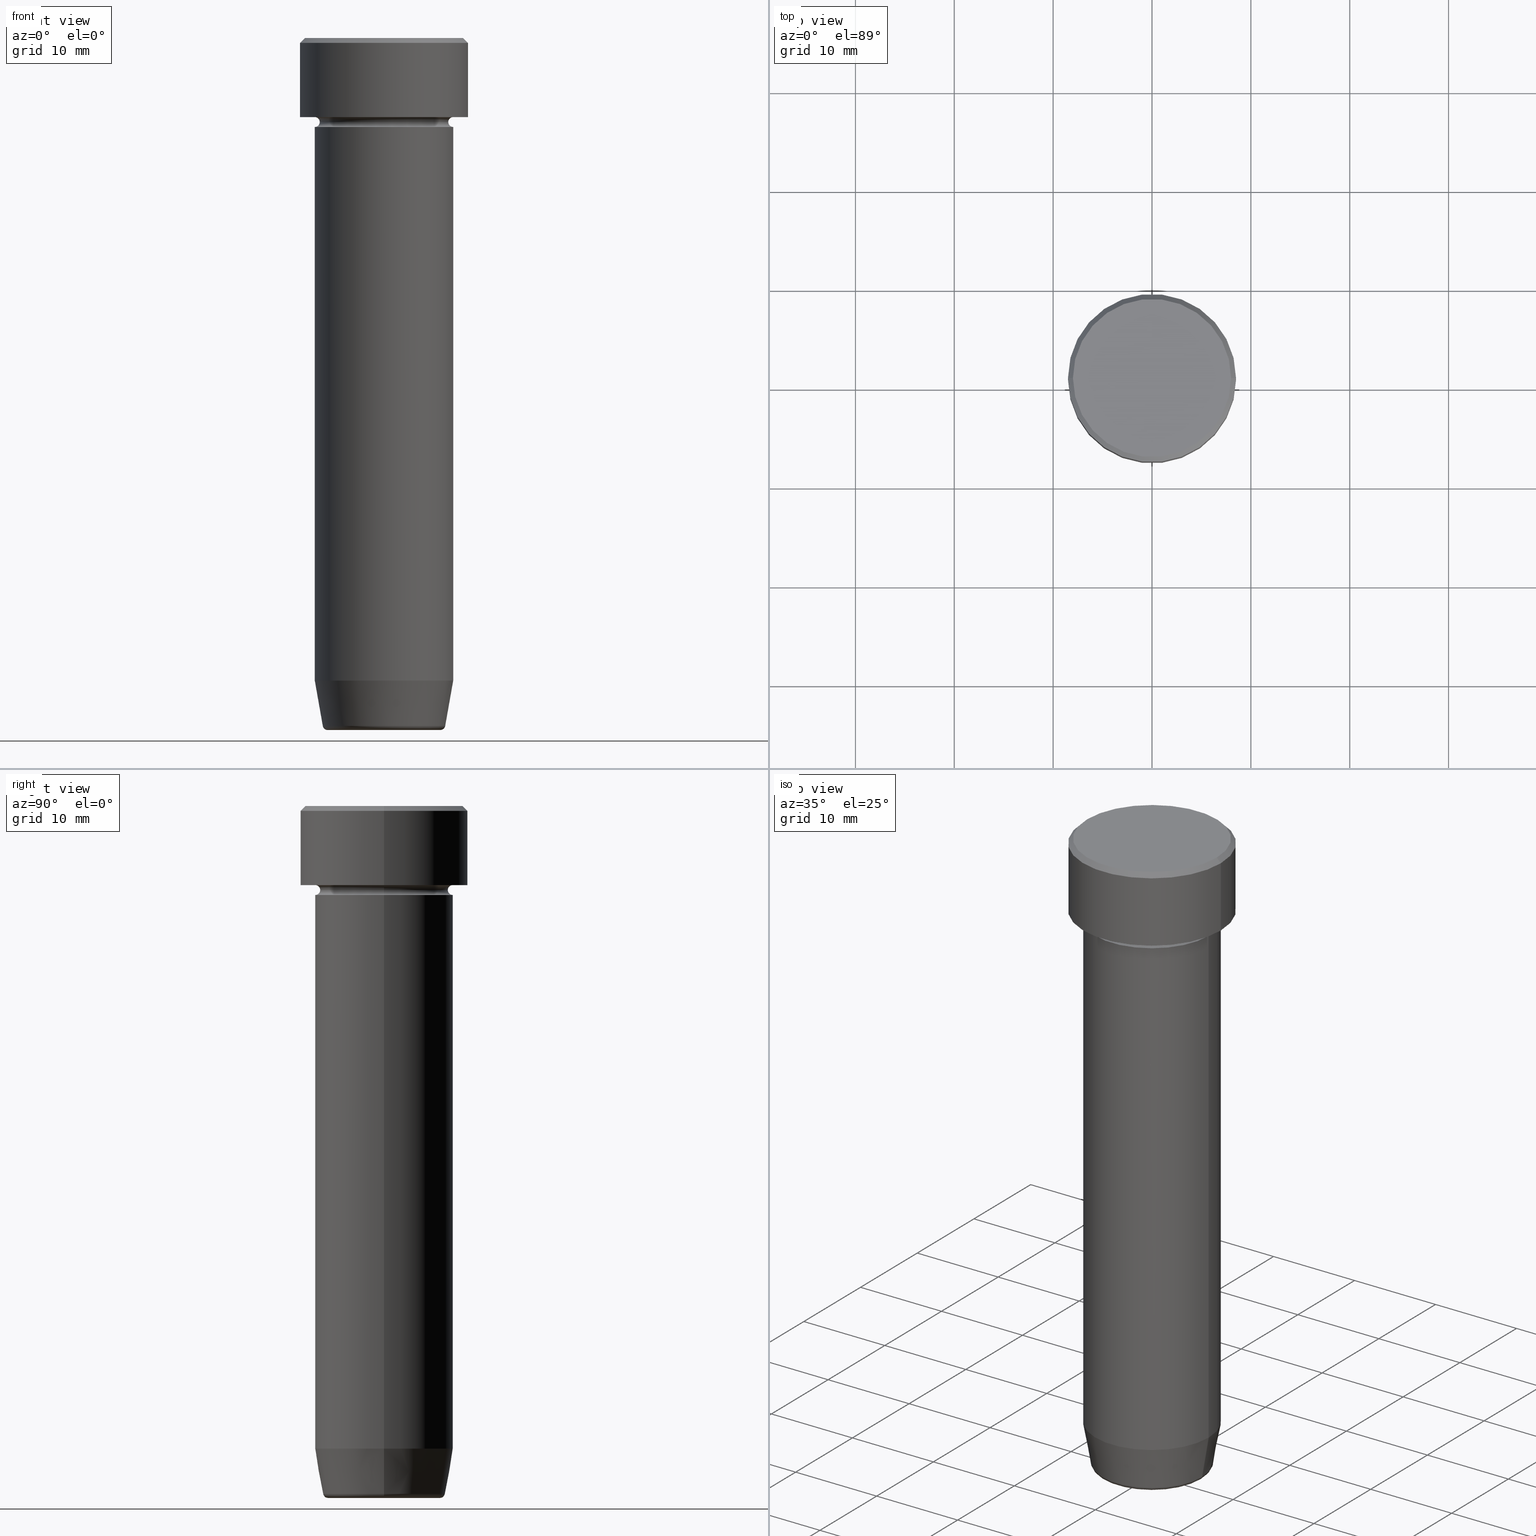
[diagram: canonical four-view strip — front | top / right | iso, engineering-drawing reading convention]
A machine part, canonical four-view strip (front | top / right | iso — engineering-drawing reading convention). The complete STEP part file that produces these views, byte-faithful:
ISO-10303-21;
HEADER;
FILE_DESCRIPTION (( 'STEP AP203' ),
    '1' );
FILE_NAME ('c4c0.STEP',
    '2024-01-02T23:21:07',
    ( '' ),
    ( '' ),
    'SwSTEP 2.0',
    'SolidWorks 2019',
    '' );
FILE_SCHEMA (( 'CONFIG_CONTROL_DESIGN' ));
ENDSEC;

DATA;
#1 = AXIS2_PLACEMENT_3D ( 'NONE', #133, #444, #6 ) ;
#2 = DIRECTION ( 'NONE',  ( 0.000000000000000000, -1.000000000000000000, 0.000000000000000000 ) ) ;
#3 = AXIS2_PLACEMENT_3D ( 'NONE', #91, #544, #594 ) ;
#4 = ORIENTED_EDGE ( 'NONE', *, *, #54, .T. ) ;
#5 = DIRECTION ( 'NONE',  ( -1.000000000000000000, 0.000000000000000000, -0.000000000000000000 ) ) ;
#6 = DIRECTION ( 'NONE',  ( -1.000000000000000000, 0.000000000000000000, 0.000000000000000000 ) ) ;
#7 = CC_DESIGN_DATE_AND_TIME_ASSIGNMENT ( #312, #127, ( #471 ) ) ;
#8 = APPLICATION_CONTEXT ( 'configuration controlled 3d designs of mechanical parts and assemblies' ) ;
#9 = VECTOR ( 'NONE', #131, 1000.000000000000000 ) ;
#10 = DIRECTION ( 'NONE',  ( -0.000000000000000000, -0.000000000000000000, 1.000000000000000000 ) ) ;
#11 = FACE_OUTER_BOUND ( 'NONE', #106, .T. ) ;
#12 = LOCAL_TIME ( 0, 21, 7.000000000000000000, #178 ) ;
#13 = CARTESIAN_POINT ( 'NONE',  ( 6.118365096457672792, 0.000000000000000000, -70.00000000000000000 ) ) ;
#14 = CARTESIAN_POINT ( 'NONE',  ( 6.999999999999999112, 0.000000000000000000, -22.00000000000000000 ) ) ;
#15 = CARTESIAN_POINT ( 'NONE',  ( -6.999999999999999112, 8.572527594031472204E-16, -65.00000000000000000 ) ) ;
#16 = DIRECTION ( 'NONE',  ( -1.000000000000000000, 0.000000000000000000, -0.000000000000000000 ) ) ;
#17 = TOROIDAL_SURFACE ( 'NONE', #359, 5.698815280869032662, 0.5000000000000000000 ) ;
#18 = ORIENTED_EDGE ( 'NONE', *, *, #218, .F. ) ;
#19 = PRODUCT_DEFINITION_FORMATION_WITH_SPECIFIED_SOURCE ( 'LIBOVOLN�', '', #274, .NOT_KNOWN. ) ;
#20 = ADVANCED_FACE ( 'NONE', ( #375 ), #142, .T. ) ;
#21 = APPROVAL_DATE_TIME ( #294, #477 ) ;
#22 = AXIS2_PLACEMENT_3D ( 'NONE', #140, #107, #242 ) ;
#23 = VERTEX_POINT ( 'NONE', #276 ) ;
#24 = AXIS2_PLACEMENT_3D ( 'NONE', #455, #145, #466 ) ;
#25 = CC_DESIGN_APPROVAL ( #477, ( #73 ) ) ;
#26 = ORIENTED_EDGE ( 'NONE', *, *, #226, .F. ) ;
#27 = DIRECTION ( 'NONE',  ( -0.000000000000000000, -0.000000000000000000, 1.000000000000000000 ) ) ;
#28 = DIRECTION ( 'NONE',  ( -0.000000000000000000, -0.000000000000000000, 1.000000000000000000 ) ) ;
#29 = EDGE_CURVE ( 'NONE', #23, #433, #273, .T. ) ;
#30 = VERTEX_POINT ( 'NONE', #162 ) ;
#31 = PERSON_AND_ORGANIZATION ( #533, #595 ) ;
#32 = DIRECTION ( 'NONE',  ( -1.000000000000000000, 0.000000000000000000, 0.000000000000000000 ) ) ;
#33 = EDGE_LOOP ( 'NONE', ( #586, #214, #388, #393 ) ) ;
#34 = CYLINDRICAL_SURFACE ( 'NONE', #481, 6.999999999999999112 ) ;
#35 = CIRCLE ( 'NONE', #552, 8.500000000000000000 ) ;
#36 = DIRECTION ( 'NONE',  ( 1.000000000000000000, 0.000000000000000000, 0.000000000000000000 ) ) ;
#37 = ADVANCED_FACE ( 'NONE', ( #165 ), #447, .F. ) ;
#38 = EDGE_CURVE ( 'NONE', #408, #77, #525, .T. ) ;
#39 = ORIENTED_EDGE ( 'NONE', *, *, #29, .F. ) ;
#40 = FACE_OUTER_BOUND ( 'NONE', #110, .T. ) ;
#41 = CARTESIAN_POINT ( 'NONE',  ( 6.999999999999999112, 0.000000000000000000, 0.000000000000000000 ) ) ;
#42 = CIRCLE ( 'NONE', #314, 6.999999999999999112 ) ;
#43 = ADVANCED_FACE ( 'NONE', ( #269 ), #560, .F. ) ;
#44 = ORIENTED_EDGE ( 'NONE', *, *, #330, .F. ) ;
#45 = CARTESIAN_POINT ( 'NONE',  ( 0.000000000000000000, 0.000000000000000000, -8.500000000000000000 ) ) ;
#46 = CARTESIAN_POINT ( 'NONE',  ( 0.000000000000000000, 0.000000000000000000, -0.4999999999999987232 ) ) ;
#47 = ADVANCED_FACE ( 'NONE', ( #399 ), #17, .T. ) ;
#48 = DIRECTION ( 'NONE',  ( -0.000000000000000000, -0.000000000000000000, 1.000000000000000000 ) ) ;
#49 = EDGE_CURVE ( 'NONE', #400, #385, #439, .T. ) ;
#50 = DIRECTION ( 'NONE',  ( -0.1736481776669304145, 2.126576849575772531E-17, 0.9848077530122080203 ) ) ;
#51 = CIRCLE ( 'NONE', #396, 8.500000000000000000 ) ;
#52 = DIRECTION ( 'NONE',  ( 0.000000000000000000, -0.000000000000000000, 1.000000000000000000 ) ) ;
#53 = AXIS2_PLACEMENT_3D ( 'NONE', #203, #579, #532 ) ;
#54 = EDGE_CURVE ( 'NONE', #83, #230, #90, .T. ) ;
#55 = CC_DESIGN_SECURITY_CLASSIFICATION ( #471, ( #19 ) ) ;
#56 = CARTESIAN_POINT ( 'NONE',  ( 8.000000000000000000, 9.797174393178825657E-16, 0.000000000000000000 ) ) ;
#57 = EDGE_LOOP ( 'NONE', ( #431, #410, #202, #488 ) ) ;
#58 = ORIENTED_EDGE ( 'NONE', *, *, #153, .T. ) ;
#59 = CALENDAR_DATE ( 2024, 3, 1 ) ;
#60 = CARTESIAN_POINT ( 'NONE',  ( 0.000000000000000000, 2.449293598294708880E-15, -70.00000000000000000 ) ) ;
#61 = ORIENTED_EDGE ( 'NONE', *, *, #308, .T. ) ;
#62 = EDGE_CURVE ( 'NONE', #352, #230, #309, .T. ) ;
#63 = ADVANCED_FACE ( 'NONE', ( #557 ), #272, .T. ) ;
#64 = ORIENTED_EDGE ( 'NONE', *, *, #347, .F. ) ;
#65 =( LENGTH_UNIT ( ) NAMED_UNIT ( * ) SI_UNIT ( .MILLI., .METRE. ) );
#66 = EDGE_CURVE ( 'NONE', #418, #30, #513, .T. ) ;
#67 = CIRCLE ( 'NONE', #289, 7.000000000000000888 ) ;
#68 = DIRECTION ( 'NONE',  ( 1.000000000000000000, 0.000000000000000000, 0.000000000000000000 ) ) ;
#69 = CARTESIAN_POINT ( 'NONE',  ( 0.000000000000000000, 0.000000000000000000, 0.000000000000000000 ) ) ;
#70 = APPROVAL_STATUS ( 'not_yet_approved' ) ;
#71 = CARTESIAN_POINT ( 'NONE',  ( 0.000000000000000000, 0.000000000000000000, 0.000000000000000000 ) ) ;
#72 = ORIENTED_EDGE ( 'NONE', *, *, #66, .T. ) ;
#73 = PRODUCT_DEFINITION ( 'NEZN�M�', '', #19, #93 ) ;
#74 = DIRECTION ( 'NONE',  ( 0.000000000000000000, 0.000000000000000000, 1.000000000000000000 ) ) ;
#75 = EDGE_LOOP ( 'NONE', ( #311, #250, #177, #548 ) ) ;
#76 = AXIS2_PLACEMENT_3D ( 'NONE', #96, #196, #465 ) ;
#77 = VERTEX_POINT ( 'NONE', #14 ) ;
#78 = CIRCLE ( 'NONE', #149, 6.500000000000000888 ) ;
#79 = CARTESIAN_POINT ( 'NONE',  ( -6.999999999999999112, 8.572527594031472204E-16, -22.00000000000000000 ) ) ;
#80 = APPROVAL_STATUS ( 'not_yet_approved' ) ;
#81 = APPROVAL ( #80, 'NEUR�EN�' ) ;
#82 = AXIS2_PLACEMENT_3D ( 'NONE', #101, #509, #386 ) ;
#83 = VERTEX_POINT ( 'NONE', #478 ) ;
#84 = LOCAL_TIME ( 0, 21, 7.000000000000000000, #358 ) ;
#85 = ORIENTED_EDGE ( 'NONE', *, *, #224, .F. ) ;
#86 = APPROVAL_DATE_TIME ( #172, #81 ) ;
#87 = FACE_OUTER_BOUND ( 'NONE', #520, .T. ) ;
#88 = DIRECTION ( 'NONE',  ( 1.000000000000000000, 0.000000000000000000, 0.000000000000000000 ) ) ;
#89 = CC_DESIGN_PERSON_AND_ORGANIZATION_ASSIGNMENT ( #130, #175, ( #471 ) ) ;
#90 = CIRCLE ( 'NONE', #427, 0.5000000000000004441 ) ;
#91 = CARTESIAN_POINT ( 'NONE',  ( 0.000000000000000000, 0.000000000000000000, -8.000000000000000000 ) ) ;
#92 = DIRECTION ( 'NONE',  ( -1.000000000000000000, 0.000000000000000000, 0.000000000000000000 ) ) ;
#93 = DESIGN_CONTEXT ( 'detailed design', #8, 'design' ) ;
#94 = FACE_OUTER_BOUND ( 'NONE', #317, .T. ) ;
#95 = AXIS2_PLACEMENT_3D ( 'NONE', #316, #2, #445 ) ;
#96 = CARTESIAN_POINT ( 'NONE',  ( 7.000000000000000888, 8.572527594031474176E-16, -8.500000000000000000 ) ) ;
#97 = DIRECTION ( 'NONE',  ( 1.000000000000000000, 0.000000000000000000, 0.000000000000000000 ) ) ;
#98 = CARTESIAN_POINT ( 'NONE',  ( 0.000000000000000000, 0.000000000000000000, -9.000000000000001776 ) ) ;
#99 = CLOSED_SHELL ( 'NONE', ( #20, #37, #280, #589, #287, #534, #459, #63, #195, #256, #492, #43, #519 ) ) ;
#100 = ORIENTED_EDGE ( 'NONE', *, *, #139, .T. ) ;
#101 = CARTESIAN_POINT ( 'NONE',  ( 0.000000000000000000, 0.000000000000000000, -70.00000000000000000 ) ) ;
#102 = AXIS2_PLACEMENT_3D ( 'NONE', #98, #143, #428 ) ;
#103 = CIRCLE ( 'NONE', #255, 8.500000000000000000 ) ;
#104 = AXIS2_PLACEMENT_3D ( 'NONE', #109, #248, #111 ) ;
#105 = ORIENTED_EDGE ( 'NONE', *, *, #423, .T. ) ;
#106 = EDGE_LOOP ( 'NONE', ( #365, #222 ) ) ;
#107 = DIRECTION ( 'NONE',  ( -0.000000000000000000, -0.000000000000000000, 1.000000000000000000 ) ) ;
#108 = ORIENTED_EDGE ( 'NONE', *, *, #336, .F. ) ;
#109 = CARTESIAN_POINT ( 'NONE',  ( 0.000000000000000000, 0.000000000000000000, 0.000000000000000000 ) ) ;
#110 = EDGE_LOOP ( 'NONE', ( #210, #449, #44, #85 ) ) ;
#111 = DIRECTION ( 'NONE',  ( 1.000000000000000000, 0.000000000000000000, 0.000000000000000000 ) ) ;
#112 = DIRECTION ( 'NONE',  ( 1.000000000000000000, 0.000000000000000000, 0.000000000000000000 ) ) ;
#113 = CIRCLE ( 'NONE', #373, 0.5000000000000004441 ) ;
#114 = ORIENTED_EDGE ( 'NONE', *, *, #38, .F. ) ;
#115 = DIRECTION ( 'NONE',  ( 0.000000000000000000, 0.000000000000000000, -1.000000000000000000 ) ) ;
#116 = AXIS2_PLACEMENT_3D ( 'NONE', #456, #541, #118 ) ;
#117 = EDGE_CURVE ( 'NONE', #156, #574, #147, .T. ) ;
#118 = DIRECTION ( 'NONE',  ( 1.000000000000000000, 0.000000000000000000, 0.000000000000000000 ) ) ;
#119 = CARTESIAN_POINT ( 'NONE',  ( -6.999999999999999112, 8.572527594031472204E-16, 0.000000000000000000 ) ) ;
#120 = CIRCLE ( 'NONE', #389, 6.191219157375138948 ) ;
#121 = ORIENTED_EDGE ( 'NONE', *, *, #168, .F. ) ;
#122 = APPROVAL_STATUS ( 'not_yet_approved' ) ;
#123 = CARTESIAN_POINT ( 'NONE',  ( -6.999999999999999112, 8.572527594031472204E-16, -22.00000000000000000 ) ) ;
#124 = ORIENTED_EDGE ( 'NONE', *, *, #336, .T. ) ;
#125 = PERSON_AND_ORGANIZATION ( #533, #595 ) ;
#126 = CARTESIAN_POINT ( 'NONE',  ( 6.999999999999999112, 0.000000000000000000, -22.00000000000000000 ) ) ;
#127 = DATE_TIME_ROLE ( 'classification_date' ) ;
#128 = FACE_OUTER_BOUND ( 'NONE', #180, .T. ) ;
#129 = AXIS2_PLACEMENT_3D ( 'NONE', #378, #575, #482 ) ;
#130 = PERSON_AND_ORGANIZATION ( #533, #595 ) ;
#131 = DIRECTION ( 'NONE',  ( -0.000000000000000000, -0.000000000000000000, 1.000000000000000000 ) ) ;
#132 = CARTESIAN_POINT ( 'NONE',  ( 7.000000000000000000, 0.000000000000000000, -9.000000000000001776 ) ) ;
#133 = CARTESIAN_POINT ( 'NONE',  ( 0.000000000000000000, 0.000000000000000000, -69.58682408883346682 ) ) ;
#134 = DIRECTION ( 'NONE',  ( 0.1736481776669304145, 0.000000000000000000, 0.9848077530122080203 ) ) ;
#135 = CARTESIAN_POINT ( 'NONE',  ( -6.999999999999999112, 8.572527594031472204E-16, 0.000000000000000000 ) ) ;
#136 = FACE_OUTER_BOUND ( 'NONE', #370, .T. ) ;
#137 = CIRCLE ( 'NONE', #217, 6.999999999999999112 ) ;
#138 = DIRECTION ( 'NONE',  ( 0.000000000000000000, 0.000000000000000000, -1.000000000000000000 ) ) ;
#139 = EDGE_CURVE ( 'NONE', #171, #30, #474, .T. ) ;
#140 = CARTESIAN_POINT ( 'NONE',  ( 0.000000000000000000, 0.000000000000000000, -22.00000000000000000 ) ) ;
#141 = CARTESIAN_POINT ( 'NONE',  ( 0.000000000000000000, 0.000000000000000000, 0.000000000000000000 ) ) ;
#142 = CONICAL_SURFACE ( 'NONE', #369, 8.000000000000000000, 0.7853981633974500554 ) ;
#143 = DIRECTION ( 'NONE',  ( -0.000000000000000000, -0.000000000000000000, 1.000000000000000000 ) ) ;
#144 = ORIENTED_EDGE ( 'NONE', *, *, #448, .F. ) ;
#145 = DIRECTION ( 'NONE',  ( 0.000000000000000000, -0.000000000000000000, 1.000000000000000000 ) ) ;
#146 = VECTOR ( 'NONE', #469, 1000.000000000000000 ) ;
#147 = LINE ( 'NONE', #56, #146 ) ;
#148 = AXIS2_PLACEMENT_3D ( 'NONE', #225, #598, #319 ) ;
#149 = AXIS2_PLACEMENT_3D ( 'NONE', #379, #10, #376 ) ;
#150 = ORIENTED_EDGE ( 'NONE', *, *, #347, .T. ) ;
#151 = CARTESIAN_POINT ( 'NONE',  ( -5.698815280869032662, 6.979035892648284800E-16, -69.50000000000000000 ) ) ;
#152 = ORIENTED_EDGE ( 'NONE', *, *, #448, .T. ) ;
#153 = EDGE_CURVE ( 'NONE', #83, #259, #78, .T. ) ;
#154 = CARTESIAN_POINT ( 'NONE',  ( 0.000000000000000000, 0.000000000000000000, 0.000000000000000000 ) ) ;
#155 = DIRECTION ( 'NONE',  ( 0.000000000000000000, 0.000000000000000000, -1.000000000000000000 ) ) ;
#156 = VERTEX_POINT ( 'NONE', #568 ) ;
#157 = DIRECTION ( 'NONE',  ( 1.000000000000000000, 0.000000000000000000, 0.000000000000000000 ) ) ;
#158 = APPROVAL_PERSON_ORGANIZATION ( #125, #81, #260 ) ;
#159 = ORIENTED_EDGE ( 'NONE', *, *, #364, .F. ) ;
#160 = DIRECTION ( 'NONE',  ( -0.000000000000000000, -0.000000000000000000, 1.000000000000000000 ) ) ;
#161 = CARTESIAN_POINT ( 'NONE',  ( 0.000000000000000000, 0.000000000000000000, -8.000000000000000000 ) ) ;
#162 = CARTESIAN_POINT ( 'NONE',  ( -8.500000000000000000, 1.040949779275250140E-15, -0.4999999999999987232 ) ) ;
#163 = APPROVAL_ROLE ( '' ) ;
#164 = CARTESIAN_POINT ( 'NONE',  ( -7.000000000000000888, 0.000000000000000000, -8.500000000000000000 ) ) ;
#165 = FACE_OUTER_BOUND ( 'NONE', #166, .T. ) ;
#166 = EDGE_LOOP ( 'NONE', ( #58, #476, #495, #207 ) ) ;
#167 = DIRECTION ( 'NONE',  ( -0.000000000000000000, -0.000000000000000000, 1.000000000000000000 ) ) ;
#168 = EDGE_CURVE ( 'NONE', #433, #475, #191, .T. ) ;
#169 = AXIS2_PLACEMENT_3D ( 'NONE', #60, #52, #381 ) ;
#170 = AXIS2_PLACEMENT_3D ( 'NONE', #404, #173, #36 ) ;
#171 = VERTEX_POINT ( 'NONE', #572 ) ;
#172 = DATE_AND_TIME ( #496, #453 ) ;
#173 = DIRECTION ( 'NONE',  ( 0.000000000000000000, 0.000000000000000000, -1.000000000000000000 ) ) ;
#174 = ORIENTED_EDGE ( 'NONE', *, *, #226, .T. ) ;
#175 = PERSON_AND_ORGANIZATION_ROLE ( 'classification_officer' ) ;
#176 = DIRECTION ( 'NONE',  ( -0.000000000000000000, -0.000000000000000000, 1.000000000000000000 ) ) ;
#177 = ORIENTED_EDGE ( 'NONE', *, *, #194, .F. ) ;
#178 = COORDINATED_UNIVERSAL_TIME_OFFSET ( 1, 0, .AHEAD. ) ;
#179 = ADVANCED_FACE ( 'NONE', ( #11 ), #193, .F. ) ;
#180 = EDGE_LOOP ( 'NONE', ( #581, #441 ) ) ;
#181 = AXIS2_PLACEMENT_3D ( 'NONE', #283, #467, #332 ) ;
#182 = CIRCLE ( 'NONE', #245, 6.999999999999999112 ) ;
#183 = EDGE_CURVE ( 'NONE', #475, #408, #426, .T. ) ;
#184 = DIRECTION ( 'NONE',  ( -0.000000000000000000, -0.000000000000000000, 1.000000000000000000 ) ) ;
#185 = DIRECTION ( 'NONE',  ( -0.000000000000000000, -0.000000000000000000, 1.000000000000000000 ) ) ;
#186 = PRODUCT_DEFINITION_SHAPE ( 'NONE', 'NONE',  #73 ) ;
#187 = FACE_OUTER_BOUND ( 'NONE', #502, .T. ) ;
#188 = DIRECTION ( 'NONE',  ( -0.7071067811865487940, 0.000000000000000000, -0.7071067811865463515 ) ) ;
#189 = CARTESIAN_POINT ( 'NONE',  ( 6.999999999999999112, 0.000000000000000000, -65.00000000000000000 ) ) ;
#190 = DIRECTION ( 'NONE',  ( -0.000000000000000000, -0.000000000000000000, 1.000000000000000000 ) ) ;
#191 = LINE ( 'NONE', #295, #235 ) ;
#192 = DIRECTION ( 'NONE',  ( 1.000000000000000000, 0.000000000000000000, 0.000000000000000000 ) ) ;
#193 = PLANE ( 'NONE',  #169 ) ;
#194 = EDGE_CURVE ( 'NONE', #30, #574, #51, .T. ) ;
#195 = ADVANCED_FACE ( 'NONE', ( #419, #237 ), #337, .T. ) ;
#196 = DIRECTION ( 'NONE',  ( -1.224646799147353207E-16, 1.000000000000000000, 0.000000000000000000 ) ) ;
#197 = CC_DESIGN_DATE_AND_TIME_ASSIGNMENT ( #198, #489, ( #73 ) ) ;
#198 = DATE_AND_TIME ( #306, #325 ) ;
#199 = VECTOR ( 'NONE', #176, 1000.000000000000000 ) ;
#200 = EDGE_LOOP ( 'NONE', ( #121, #348, #305, #329 ) ) ;
#201 = DIRECTION ( 'NONE',  ( 1.224646799147353207E-16, 1.000000000000000000, 0.000000000000000000 ) ) ;
#202 = ORIENTED_EDGE ( 'NONE', *, *, #383, .T. ) ;
#203 = CARTESIAN_POINT ( 'NONE',  ( 5.698815280869032662, 0.000000000000000000, -69.50000000000000000 ) ) ;
#204 = ORIENTED_EDGE ( 'NONE', *, *, #414, .F. ) ;
#205 = DIRECTION ( 'NONE',  ( -0.000000000000000000, -0.000000000000000000, 1.000000000000000000 ) ) ;
#206 = AXIS2_PLACEMENT_3D ( 'NONE', #331, #282, #506 ) ;
#207 = ORIENTED_EDGE ( 'NONE', *, *, #308, .F. ) ;
#208 = ORIENTED_EDGE ( 'NONE', *, *, #38, .T. ) ;
#209 = CYLINDRICAL_SURFACE ( 'NONE', #278, 8.500000000000000000 ) ;
#210 = ORIENTED_EDGE ( 'NONE', *, *, #277, .T. ) ;
#211 = PERSON_AND_ORGANIZATION_ROLE ( 'design_supplier' ) ;
#212 = CARTESIAN_POINT ( 'NONE',  ( -6.191219157375138948, 8.077292158965355434E-16, -69.58682408883346682 ) ) ;
#213 = APPROVAL ( #122, 'NEUR�EN�' ) ;
#214 = ORIENTED_EDGE ( 'NONE', *, *, #168, .T. ) ;
#215 = APPROVAL_DATE_TIME ( #220, #213 ) ;
#216 = CARTESIAN_POINT ( 'NONE',  ( 0.000000000000000000, 0.000000000000000000, -69.58682408883346682 ) ) ;
#217 = AXIS2_PLACEMENT_3D ( 'NONE', #387, #28, #479 ) ;
#218 = EDGE_CURVE ( 'NONE', #352, #400, #288, .T. ) ;
#219 = EDGE_LOOP ( 'NONE', ( #545, #18 ) ) ;
#220 = DATE_AND_TIME ( #409, #12 ) ;
#221 = CARTESIAN_POINT ( 'NONE',  ( 0.000000000000000000, 0.000000000000000000, -8.000000000000000000 ) ) ;
#222 = ORIENTED_EDGE ( 'NONE', *, *, #249, .T. ) ;
#223 = ORIENTED_EDGE ( 'NONE', *, *, #555, .F. ) ;
#224 = EDGE_CURVE ( 'NONE', #526, #77, #511, .T. ) ;
#225 = CARTESIAN_POINT ( 'NONE',  ( 0.000000000000000000, 0.000000000000000000, 0.000000000000000000 ) ) ;
#226 = EDGE_CURVE ( 'NONE', #385, #230, #517, .T. ) ;
#227 = ORIENTED_EDGE ( 'NONE', *, *, #62, .F. ) ;
#228 = AXIS2_PLACEMENT_3D ( 'NONE', #592, #167, #547 ) ;
#229 = CARTESIAN_POINT ( 'NONE',  ( 0.000000000000000000, 0.000000000000000000, -22.00000000000000000 ) ) ;
#230 = VERTEX_POINT ( 'NONE', #291 ) ;
#231 = CARTESIAN_POINT ( 'NONE',  ( -5.698815280869032662, 7.280546308273760746E-16, -70.00000000000000000 ) ) ;
#232 = DIRECTION ( 'NONE',  ( 1.000000000000000000, 0.000000000000000000, 0.000000000000000000 ) ) ;
#233 = FACE_OUTER_BOUND ( 'NONE', #537, .T. ) ;
#234 = FACE_OUTER_BOUND ( 'NONE', #299, .T. ) ;
#235 = VECTOR ( 'NONE', #50, 1000.000000000000227 ) ;
#236 = CIRCLE ( 'NONE', #53, 0.5000000000000004441 ) ;
#237 = FACE_OUTER_BOUND ( 'NONE', #585, .T. ) ;
#238 = DIRECTION ( 'NONE',  ( -0.000000000000000000, -0.000000000000000000, 1.000000000000000000 ) ) ;
#239 = CARTESIAN_POINT ( 'NONE',  ( -8.500000000000000000, 1.040949779275250140E-15, 0.000000000000000000 ) ) ;
#240 = ORIENTED_EDGE ( 'NONE', *, *, #183, .F. ) ;
#241 = PERSON_AND_ORGANIZATION ( #533, #595 ) ;
#242 = DIRECTION ( 'NONE',  ( 1.000000000000000000, 0.000000000000000000, 0.000000000000000000 ) ) ;
#243 = VERTEX_POINT ( 'NONE', #559 ) ;
#244 = MECHANICAL_CONTEXT ( 'NONE', #284, 'mechanical' ) ;
#245 = AXIS2_PLACEMENT_3D ( 'NONE', #229, #48, #192 ) ;
#246 = CIRCLE ( 'NONE', #553, 0.5000000000000004441 ) ;
#247 = ORIENTED_EDGE ( 'NONE', *, *, #570, .F. ) ;
#248 = DIRECTION ( 'NONE',  ( -0.000000000000000000, -0.000000000000000000, 1.000000000000000000 ) ) ;
#249 = EDGE_CURVE ( 'NONE', #491, #253, #440, .T. ) ;
#250 = ORIENTED_EDGE ( 'NONE', *, *, #117, .T. ) ;
#251 = CARTESIAN_POINT ( 'NONE',  ( 0.000000000000000000, 0.000000000000000000, -8.500000000000000000 ) ) ;
#252 = DIRECTION ( 'NONE',  ( 1.224646799147353207E-16, 1.000000000000000000, 0.000000000000000000 ) ) ;
#253 = VERTEX_POINT ( 'NONE', #339 ) ;
#254 = DIRECTION ( 'NONE',  ( -0.000000000000000000, -1.000000000000000000, -0.000000000000000000 ) ) ;
#255 = AXIS2_PLACEMENT_3D ( 'NONE', #161, #354, #401 ) ;
#256 = ADVANCED_FACE ( 'NONE', ( #234 ), #341, .T. ) ;
#257 = CARTESIAN_POINT ( 'NONE',  ( 0.000000000000000000, 0.000000000000000000, 0.000000000000000000 ) ) ;
#258 = VECTOR ( 'NONE', #384, 1000.000000000000000 ) ;
#259 = VERTEX_POINT ( 'NONE', #507 ) ;
#260 = APPROVAL_ROLE ( '' ) ;
#261 = CC_DESIGN_PERSON_AND_ORGANIZATION_ASSIGNMENT ( #31, #457, ( #19 ) ) ;
#262 = ORIENTED_EDGE ( 'NONE', *, *, #318, .F. ) ;
#263 = COORDINATED_UNIVERSAL_TIME_OFFSET ( 1, 0, .AHEAD. ) ;
#264 = EDGE_CURVE ( 'NONE', #259, #243, #462, .T. ) ;
#265 = VECTOR ( 'NONE', #304, 1000.000000000000000 ) ;
#266 = MANIFOLD_SOLID_BREP ( 'Zaoblit4', #437 ) ;
#267 = AXIS2_PLACEMENT_3D ( 'NONE', #141, #473, #512 ) ;
#268 = MANIFOLD_SOLID_BREP ( 'Zkosen�1', #99 ) ;
#269 = FACE_OUTER_BOUND ( 'NONE', #596, .T. ) ;
#270 = SHAPE_DEFINITION_REPRESENTATION ( #186, #480 ) ;
#271 = CYLINDRICAL_SURFACE ( 'NONE', #148, 6.999999999999999112 ) ;
#272 = CYLINDRICAL_SURFACE ( 'NONE', #416, 8.500000000000000000 ) ;
#273 = CIRCLE ( 'NONE', #1, 6.191219157375138948 ) ;
#274 = PRODUCT ( 'c4c0', 'c4c0', '', ( #244 ) ) ;
#275 = CARTESIAN_POINT ( 'NONE',  ( 0.000000000000000000, 6.999999999999999112, -22.00000000000000000 ) ) ;
#276 = CARTESIAN_POINT ( 'NONE',  ( 6.191219157375138948, 0.000000000000000000, -69.58682408883346682 ) ) ;
#277 = EDGE_CURVE ( 'NONE', #526, #475, #137, .T. ) ;
#278 = AXIS2_PLACEMENT_3D ( 'NONE', #71, #205, #395 ) ;
#279 = CARTESIAN_POINT ( 'NONE',  ( 0.000000000000000000, 0.000000000000000000, -70.00000000000000000 ) ) ;
#280 = ADVANCED_FACE ( 'NONE', ( #540 ), #500, .F. ) ;
#281 = DIRECTION ( 'NONE',  ( -0.000000000000000000, -0.000000000000000000, 1.000000000000000000 ) ) ;
#282 = DIRECTION ( 'NONE',  ( 0.000000000000000000, 0.000000000000000000, -1.000000000000000000 ) ) ;
#283 = CARTESIAN_POINT ( 'NONE',  ( 0.000000000000000000, 0.000000000000000000, -70.00000000000000000 ) ) ;
#284 = APPLICATION_CONTEXT ( 'configuration controlled 3d designs of mechanical parts and assemblies' ) ;
#285 = FACE_OUTER_BOUND ( 'NONE', #33, .T. ) ;
#286 = DIRECTION ( 'NONE',  ( 1.000000000000000000, 0.000000000000000000, 0.000000000000000000 ) ) ;
#287 = ADVANCED_FACE ( 'NONE', ( #490 ), #209, .T. ) ;
#288 = CIRCLE ( 'NONE', #22, 6.999999999999999112 ) ;
#289 = AXIS2_PLACEMENT_3D ( 'NONE', #527, #313, #536 ) ;
#290 = CARTESIAN_POINT ( 'NONE',  ( 8.500000000000000000, 0.000000000000000000, -8.000000000000000000 ) ) ;
#291 = CARTESIAN_POINT ( 'NONE',  ( -7.000000000000000888, 8.572527594031474176E-16, -9.000000000000001776 ) ) ;
#292 = ORIENTED_EDGE ( 'NONE', *, *, #555, .T. ) ;
#293 = EDGE_LOOP ( 'NONE', ( #150, #72, #538, #361 ) ) ;
#294 = DATE_AND_TIME ( #59, #84 ) ;
#295 = CARTESIAN_POINT ( 'NONE',  ( -6.118365096457672792, 7.492836231391776623E-16, -70.00000000000000000 ) ) ;
#296 = ORIENTED_EDGE ( 'NONE', *, *, #472, .T. ) ;
#297 = ORIENTED_EDGE ( 'NONE', *, *, #423, .F. ) ;
#298 = AXIS2_PLACEMENT_3D ( 'NONE', #461, #115, #504 ) ;
#299 = EDGE_LOOP ( 'NONE', ( #227, #505, #530, #144 ) ) ;
#300 = CARTESIAN_POINT ( 'NONE',  ( 8.500000000000000000, 0.000000000000000000, -0.4999999999999987232 ) ) ;
#301 = AXIS2_PLACEMENT_3D ( 'NONE', #221, #184, #32 ) ;
#302 = ORIENTED_EDGE ( 'NONE', *, *, #468, .T. ) ;
#303 = APPLICATION_PROTOCOL_DEFINITION ( 'international standard', 'config_control_design', 1994, #284 ) ;
#304 = DIRECTION ( 'NONE',  ( -0.000000000000000000, -0.000000000000000000, 1.000000000000000000 ) ) ;
#305 = ORIENTED_EDGE ( 'NONE', *, *, #463, .T. ) ;
#306 = CALENDAR_DATE ( 2024, 3, 1 ) ;
#307 = EDGE_CURVE ( 'NONE', #171, #156, #543, .T. ) ;
#308 = EDGE_CURVE ( 'NONE', #83, #576, #113, .T. ) ;
#309 = LINE ( 'NONE', #119, #9 ) ;
#310 = CC_DESIGN_PERSON_AND_ORGANIZATION_ASSIGNMENT ( #241, #353, ( #73 ) ) ;
#311 = ORIENTED_EDGE ( 'NONE', *, *, #566, .F. ) ;
#312 = DATE_AND_TIME ( #367, #363 ) ;
#313 = DIRECTION ( 'NONE',  ( -0.000000000000000000, -0.000000000000000000, 1.000000000000000000 ) ) ;
#314 = AXIS2_PLACEMENT_3D ( 'NONE', #435, #584, #112 ) ;
#315 = ORIENTED_EDGE ( 'NONE', *, *, #570, .T. ) ;
#316 = CARTESIAN_POINT ( 'NONE',  ( 7.000000000000000888, 0.000000000000000000, -8.500000000000000000 ) ) ;
#317 = EDGE_LOOP ( 'NONE', ( #247, #204, #124, #159 ) ) ;
#318 = EDGE_CURVE ( 'NONE', #243, #576, #67, .T. ) ;
#319 = DIRECTION ( 'NONE',  ( 1.000000000000000000, 0.000000000000000000, 0.000000000000000000 ) ) ;
#320 = AXIS2_PLACEMENT_3D ( 'NONE', #328, #402, #590 ) ;
#321 = ORIENTED_EDGE ( 'NONE', *, *, #406, .F. ) ;
#322 = PLANE ( 'NONE',  #24 ) ;
#323 = CC_DESIGN_PERSON_AND_ORGANIZATION_ASSIGNMENT ( #597, #211, ( #19 ) ) ;
#324 = CIRCLE ( 'NONE', #228, 7.000000000000000000 ) ;
#325 = LOCAL_TIME ( 0, 21, 7.000000000000000000, #535 ) ;
#326 = ORIENTED_EDGE ( 'NONE', *, *, #117, .F. ) ;
#327 = COORDINATED_UNIVERSAL_TIME_OFFSET ( 1, 0, .AHEAD. ) ;
#328 = CARTESIAN_POINT ( 'NONE',  ( 0.000000000000000000, 0.000000000000000000, -8.500000000000000000 ) ) ;
#329 = ORIENTED_EDGE ( 'NONE', *, *, #468, .F. ) ;
#330 = EDGE_CURVE ( 'NONE', #77, #408, #42, .T. ) ;
#331 = CARTESIAN_POINT ( 'NONE',  ( 0.000000000000000000, 0.000000000000000000, -22.00000000000000000 ) ) ;
#332 = DIRECTION ( 'NONE',  ( 1.000000000000000000, 0.000000000000000000, 0.000000000000000000 ) ) ;
#333 = AXIS2_PLACEMENT_3D ( 'NONE', #69, #588, #398 ) ;
#334 = CIRCLE ( 'NONE', #104, 8.000000000000000000 ) ;
#335 = CARTESIAN_POINT ( 'NONE',  ( 0.000000000000000000, 0.000000000000000000, -8.500000000000000000 ) ) ;
#336 = EDGE_CURVE ( 'NONE', #253, #23, #236, .T. ) ;
#337 = PLANE ( 'NONE',  #550 ) ;
#338 = DIRECTION ( 'NONE',  ( -0.000000000000000000, -0.000000000000000000, 1.000000000000000000 ) ) ;
#339 = CARTESIAN_POINT ( 'NONE',  ( 5.698815280869032662, 0.000000000000000000, -70.00000000000000000 ) ) ;
#340 = DIRECTION ( 'NONE',  ( 1.000000000000000000, 0.000000000000000000, 0.000000000000000000 ) ) ;
#341 = CYLINDRICAL_SURFACE ( 'NONE', #407, 6.999999999999999112 ) ;
#342 = AXIS2_PLACEMENT_3D ( 'NONE', #251, #392, #485 ) ;
#343 = LINE ( 'NONE', #13, #452 ) ;
#344 = VECTOR ( 'NONE', #188, 1000.000000000000000 ) ;
#345 = DIRECTION ( 'NONE',  ( -0.000000000000000000, -0.000000000000000000, 1.000000000000000000 ) ) ;
#346 = DIRECTION ( 'NONE',  ( -1.000000000000000000, 1.224646799147351482E-16, 0.000000000000000000 ) ) ;
#347 = EDGE_CURVE ( 'NONE', #514, #418, #103, .T. ) ;
#348 = ORIENTED_EDGE ( 'NONE', *, *, #364, .T. ) ;
#349 = EDGE_LOOP ( 'NONE', ( #599, #4, #152, #297 ) ) ;
#350 =( NAMED_UNIT ( * ) SI_UNIT ( $, .STERADIAN. ) SOLID_ANGLE_UNIT ( ) );
#351 = AXIS2_PLACEMENT_3D ( 'NONE', #275, #460, #5 ) ;
#352 = VERTEX_POINT ( 'NONE', #79 ) ;
#353 = PERSON_AND_ORGANIZATION_ROLE ( 'creator' ) ;
#354 = DIRECTION ( 'NONE',  ( -0.000000000000000000, -0.000000000000000000, 1.000000000000000000 ) ) ;
#355 = ADVANCED_FACE ( 'NONE', ( #40 ), #34, .T. ) ;
#356 = ORIENTED_EDGE ( 'NONE', *, *, #62, .T. ) ;
#357 = ORIENTED_EDGE ( 'NONE', *, *, #54, .F. ) ;
#358 = COORDINATED_UNIVERSAL_TIME_OFFSET ( 1, 0, .AHEAD. ) ;
#359 = AXIS2_PLACEMENT_3D ( 'NONE', #554, #360, #88 ) ;
#360 = DIRECTION ( 'NONE',  ( -0.000000000000000000, -0.000000000000000000, 1.000000000000000000 ) ) ;
#361 = ORIENTED_EDGE ( 'NONE', *, *, #383, .F. ) ;
#362 = CIRCLE ( 'NONE', #301, 7.000000000000000888 ) ;
#363 = LOCAL_TIME ( 0, 21, 7.000000000000000000, #327 ) ;
#364 = EDGE_CURVE ( 'NONE', #433, #23, #120, .T. ) ;
#365 = ORIENTED_EDGE ( 'NONE', *, *, #414, .T. ) ;
#366 = ORIENTED_EDGE ( 'NONE', *, *, #486, .F. ) ;
#367 = CALENDAR_DATE ( 2024, 3, 1 ) ;
#368 = CC_DESIGN_PERSON_AND_ORGANIZATION_ASSIGNMENT ( #587, #394, ( #274 ) ) ;
#369 = AXIS2_PLACEMENT_3D ( 'NONE', #257, #371, #92 ) ;
#370 = EDGE_LOOP ( 'NONE', ( #357, #223, #105, #174 ) ) ;
#371 = DIRECTION ( 'NONE',  ( 0.000000000000000000, 0.000000000000000000, -1.000000000000000000 ) ) ;
#372 = VECTOR ( 'NONE', #190, 1000.000000000000000 ) ;
#373 = AXIS2_PLACEMENT_3D ( 'NONE', #164, #254, #155 ) ;
#374 = AXIS2_PLACEMENT_3D ( 'NONE', #524, #160, #68 ) ;
#375 = FACE_OUTER_BOUND ( 'NONE', #75, .T. ) ;
#376 = DIRECTION ( 'NONE',  ( 1.000000000000000000, 0.000000000000000000, 0.000000000000000000 ) ) ;
#377 = ADVANCED_FACE ( 'NONE', ( #87 ), #271, .T. ) ;
#378 = CARTESIAN_POINT ( 'NONE',  ( 0.000000000000000000, 0.000000000000000000, -69.50000000000000000 ) ) ;
#379 = CARTESIAN_POINT ( 'NONE',  ( 0.000000000000000000, 0.000000000000000000, -8.500000000000000000 ) ) ;
#380 = AXIS2_PLACEMENT_3D ( 'NONE', #335, #425, #564 ) ;
#381 = DIRECTION ( 'NONE',  ( 1.000000000000000000, 0.000000000000000000, 0.000000000000000000 ) ) ;
#382 = DIRECTION ( 'NONE',  ( 0.000000000000000000, 0.000000000000000000, -1.000000000000000000 ) ) ;
#383 = EDGE_CURVE ( 'NONE', #514, #574, #499, .T. ) ;
#384 = DIRECTION ( 'NONE',  ( -0.000000000000000000, -0.000000000000000000, 1.000000000000000000 ) ) ;
#385 = VERTEX_POINT ( 'NONE', #132 ) ;
#386 = DIRECTION ( 'NONE',  ( 1.000000000000000000, 0.000000000000000000, 0.000000000000000000 ) ) ;
#387 = CARTESIAN_POINT ( 'NONE',  ( 0.000000000000000000, 0.000000000000000000, -65.00000000000000000 ) ) ;
#388 = ORIENTED_EDGE ( 'NONE', *, *, #277, .F. ) ;
#389 = AXIS2_PLACEMENT_3D ( 'NONE', #216, #405, #556 ) ;
#390 = DIRECTION ( 'NONE',  ( 1.000000000000000000, 0.000000000000000000, 0.000000000000000000 ) ) ;
#391 = ORIENTED_EDGE ( 'NONE', *, *, #264, .F. ) ;
#392 = DIRECTION ( 'NONE',  ( -0.000000000000000000, -0.000000000000000000, 1.000000000000000000 ) ) ;
#393 = ORIENTED_EDGE ( 'NONE', *, *, #463, .F. ) ;
#394 = PERSON_AND_ORGANIZATION_ROLE ( 'design_owner' ) ;
#395 = DIRECTION ( 'NONE',  ( 1.000000000000000000, 0.000000000000000000, 0.000000000000000000 ) ) ;
#396 = AXIS2_PLACEMENT_3D ( 'NONE', #46, #138, #232 ) ;
#397 = CONICAL_SURFACE ( 'NONE', #82, 6.118365096457672792, 0.1745329251994330311 ) ;
#398 = DIRECTION ( 'NONE',  ( 1.000000000000000000, 0.000000000000000000, 0.000000000000000000 ) ) ;
#399 = FACE_OUTER_BOUND ( 'NONE', #412, .T. ) ;
#400 = VERTEX_POINT ( 'NONE', #126 ) ;
#401 = DIRECTION ( 'NONE',  ( 1.000000000000000000, 0.000000000000000000, 0.000000000000000000 ) ) ;
#402 = DIRECTION ( 'NONE',  ( 0.000000000000000000, 0.000000000000000000, -1.000000000000000000 ) ) ;
#403 = PERSON_AND_ORGANIZATION ( #533, #595 ) ;
#404 = CARTESIAN_POINT ( 'NONE',  ( 0.000000000000000000, 0.000000000000000000, -70.00000000000000000 ) ) ;
#405 = DIRECTION ( 'NONE',  ( -0.000000000000000000, -0.000000000000000000, 1.000000000000000000 ) ) ;
#406 = EDGE_CURVE ( 'NONE', #418, #514, #562, .T. ) ;
#407 = AXIS2_PLACEMENT_3D ( 'NONE', #516, #281, #420 ) ;
#408 = VERTEX_POINT ( 'NONE', #123 ) ;
#409 = CALENDAR_DATE ( 2024, 3, 1 ) ;
#410 = ORIENTED_EDGE ( 'NONE', *, *, #406, .T. ) ;
#411 = CARTESIAN_POINT ( 'NONE',  ( 0.000000000000000000, 0.000000000000000000, 0.000000000000000000 ) ) ;
#412 = EDGE_LOOP ( 'NONE', ( #497, #315, #39, #108 ) ) ;
#413 = CARTESIAN_POINT ( 'NONE',  ( -8.500000000000000000, 1.040949779275250140E-15, -8.000000000000000000 ) ) ;
#414 = EDGE_CURVE ( 'NONE', #253, #491, #494, .T. ) ;
#415 = DIRECTION ( 'NONE',  ( -1.000000000000000000, 1.224646799147351482E-16, 0.000000000000000000 ) ) ;
#416 = AXIS2_PLACEMENT_3D ( 'NONE', #458, #185, #286 ) ;
#417 = PLANE ( 'NONE',  #351 ) ;
#418 = VERTEX_POINT ( 'NONE', #413 ) ;
#419 = FACE_BOUND ( 'NONE', #454, .T. ) ;
#420 = DIRECTION ( 'NONE',  ( 1.000000000000000000, 0.000000000000000000, 0.000000000000000000 ) ) ;
#421 = TOROIDAL_SURFACE ( 'NONE', #129, 5.698815280869032662, 0.5000000000000000000 ) ;
#422 = APPROVAL_PERSON_ORGANIZATION ( #403, #213, #503 ) ;
#423 = EDGE_CURVE ( 'NONE', #259, #385, #573, .T. ) ;
#424 = DIRECTION ( 'NONE',  ( 0.000000000000000000, 0.000000000000000000, -1.000000000000000000 ) ) ;
#425 = DIRECTION ( 'NONE',  ( -0.000000000000000000, -0.000000000000000000, 1.000000000000000000 ) ) ;
#426 = LINE ( 'NONE', #135, #580 ) ;
#427 = AXIS2_PLACEMENT_3D ( 'NONE', #487, #252, #415 ) ;
#428 = DIRECTION ( 'NONE',  ( 1.000000000000000000, 0.000000000000000000, 0.000000000000000000 ) ) ;
#429 = EDGE_CURVE ( 'NONE', #576, #243, #362, .T. ) ;
#430 = CIRCLE ( 'NONE', #582, 6.999999999999999112 ) ;
#431 = ORIENTED_EDGE ( 'NONE', *, *, #66, .F. ) ;
#432 = PERSON_AND_ORGANIZATION ( #533, #595 ) ;
#433 = VERTEX_POINT ( 'NONE', #212 ) ;
#434 = CARTESIAN_POINT ( 'NONE',  ( -7.000000000000000888, 0.000000000000000000, -8.000000000000000000 ) ) ;
#435 = CARTESIAN_POINT ( 'NONE',  ( 0.000000000000000000, 0.000000000000000000, -22.00000000000000000 ) ) ;
#436 = UNCERTAINTY_MEASURE_WITH_UNIT (LENGTH_MEASURE( 1.000000000000000082E-05 ), #65, 'distance_accuracy_value', 'NONE');
#437 = CLOSED_SHELL ( 'NONE', ( #47, #522, #355, #542, #377, #498, #179, #549 ) ) ;
#438 =( NAMED_UNIT ( * ) PLANE_ANGLE_UNIT ( ) SI_UNIT ( $, .RADIAN. ) );
#439 = LINE ( 'NONE', #41, #265 ) ;
#440 = CIRCLE ( 'NONE', #181, 5.698815280869032662 ) ;
#441 = ORIENTED_EDGE ( 'NONE', *, *, #566, .T. ) ;
#442 = AXIS2_PLACEMENT_3D ( 'NONE', #279, #338, #97 ) ;
#443 = AXIS2_PLACEMENT_3D ( 'NONE', #154, #74, #390 ) ;
#444 = DIRECTION ( 'NONE',  ( -0.000000000000000000, -0.000000000000000000, 1.000000000000000000 ) ) ;
#445 = DIRECTION ( 'NONE',  ( 0.000000000000000000, 0.000000000000000000, -1.000000000000000000 ) ) ;
#446 = DIRECTION ( 'NONE',  ( -0.000000000000000000, -0.000000000000000000, 1.000000000000000000 ) ) ;
#447 = TOROIDAL_SURFACE ( 'NONE', #320, 7.000000000000000888, 0.5000000000000000000 ) ;
#448 = EDGE_CURVE ( 'NONE', #230, #385, #324, .T. ) ;
#449 = ORIENTED_EDGE ( 'NONE', *, *, #183, .T. ) ;
#450 = CARTESIAN_POINT ( 'NONE',  ( 8.500000000000000000, 0.000000000000000000, 0.000000000000000000 ) ) ;
#451 = CONICAL_SURFACE ( 'NONE', #442, 6.118365096457672792, 0.1745329251994330311 ) ;
#452 = VECTOR ( 'NONE', #134, 1000.000000000000227 ) ;
#453 = LOCAL_TIME ( 0, 21, 7.000000000000000000, #263 ) ;
#454 = EDGE_LOOP ( 'NONE', ( #528, #577 ) ) ;
#455 = CARTESIAN_POINT ( 'NONE',  ( 0.000000000000000000, 0.000000000000000000, 0.000000000000000000 ) ) ;
#456 = CARTESIAN_POINT ( 'NONE',  ( 0.000000000000000000, 0.000000000000000000, -22.00000000000000000 ) ) ;
#457 = PERSON_AND_ORGANIZATION_ROLE ( 'creator' ) ;
#458 = CARTESIAN_POINT ( 'NONE',  ( 0.000000000000000000, 0.000000000000000000, 0.000000000000000000 ) ) ;
#459 = ADVANCED_FACE ( 'NONE', ( #128 ), #322, .T. ) ;
#460 = DIRECTION ( 'NONE',  ( 0.000000000000000000, 0.000000000000000000, -1.000000000000000000 ) ) ;
#461 = CARTESIAN_POINT ( 'NONE',  ( 0.000000000000000000, 0.000000000000000000, -8.500000000000000000 ) ) ;
#462 = CIRCLE ( 'NONE', #76, 0.5000000000000004441 ) ;
#463 = EDGE_CURVE ( 'NONE', #23, #526, #343, .T. ) ;
#464 = CARTESIAN_POINT ( 'NONE',  ( 0.000000000000000000, 0.000000000000000000, -65.00000000000000000 ) ) ;
#465 = DIRECTION ( 'NONE',  ( -1.000000000000000000, -1.224646799147351482E-16, 0.000000000000000000 ) ) ;
#466 = DIRECTION ( 'NONE',  ( 1.000000000000000000, 0.000000000000000000, 0.000000000000000000 ) ) ;
#467 = DIRECTION ( 'NONE',  ( 0.000000000000000000, 0.000000000000000000, -1.000000000000000000 ) ) ;
#468 = EDGE_CURVE ( 'NONE', #475, #526, #430, .T. ) ;
#469 = DIRECTION ( 'NONE',  ( 0.7071067811865487940, 8.659560562354950115E-17, -0.7071067811865463515 ) ) ;
#470 = CIRCLE ( 'NONE', #518, 6.500000000000000888 ) ;
#471 = SECURITY_CLASSIFICATION ( '', '', #539 ) ;
#472 = EDGE_CURVE ( 'NONE', #400, #352, #182, .T. ) ;
#473 = DIRECTION ( 'NONE',  ( 0.000000000000000000, 0.000000000000000000, -1.000000000000000000 ) ) ;
#474 = LINE ( 'NONE', #561, #344 ) ;
#475 = VERTEX_POINT ( 'NONE', #15 ) ;
#476 = ORIENTED_EDGE ( 'NONE', *, *, #264, .T. ) ;
#477 = APPROVAL ( #70, 'NEUR�EN�' ) ;
#478 = CARTESIAN_POINT ( 'NONE',  ( -6.500000000000000888, 8.266365894244635319E-16, -8.500000000000000000 ) ) ;
#479 = DIRECTION ( 'NONE',  ( 1.000000000000000000, 0.000000000000000000, 0.000000000000000000 ) ) ;
#480 = ADVANCED_BREP_SHAPE_REPRESENTATION ( 'c4c0', ( #268, #266, #443 ), #563 ) ;
#481 = AXIS2_PLACEMENT_3D ( 'NONE', #411, #446, #551 ) ;
#482 = DIRECTION ( 'NONE',  ( 1.000000000000000000, 0.000000000000000000, 0.000000000000000000 ) ) ;
#483 = ORIENTED_EDGE ( 'NONE', *, *, #330, .T. ) ;
#484 = APPLICATION_PROTOCOL_DEFINITION ( 'international standard', 'config_control_design', 1994, #8 ) ;
#485 = DIRECTION ( 'NONE',  ( 1.000000000000000000, 0.000000000000000000, 0.000000000000000000 ) ) ;
#486 = EDGE_CURVE ( 'NONE', #574, #30, #35, .T. ) ;
#487 = CARTESIAN_POINT ( 'NONE',  ( -7.000000000000000888, 8.572527594031474176E-16, -8.500000000000000000 ) ) ;
#488 = ORIENTED_EDGE ( 'NONE', *, *, #486, .T. ) ;
#489 = DATE_TIME_ROLE ( 'creation_date' ) ;
#490 = FACE_OUTER_BOUND ( 'NONE', #293, .T. ) ;
#491 = VERTEX_POINT ( 'NONE', #231 ) ;
#492 = ADVANCED_FACE ( 'NONE', ( #136 ), #593, .F. ) ;
#493 = ORIENTED_EDGE ( 'NONE', *, *, #49, .F. ) ;
#494 = CIRCLE ( 'NONE', #170, 5.698815280869032662 ) ;
#495 = ORIENTED_EDGE ( 'NONE', *, *, #429, .F. ) ;
#496 = CALENDAR_DATE ( 2024, 3, 1 ) ;
#497 = ORIENTED_EDGE ( 'NONE', *, *, #249, .F. ) ;
#498 = ADVANCED_FACE ( 'NONE', ( #567 ), #451, .T. ) ;
#499 = LINE ( 'NONE', #450, #199 ) ;
#500 = TOROIDAL_SURFACE ( 'NONE', #342, 7.000000000000000888, 0.5000000000000000000 ) ;
#501 = CC_DESIGN_APPROVAL ( #81, ( #471 ) ) ;
#502 = EDGE_LOOP ( 'NONE', ( #483, #208 ) ) ;
#503 = APPROVAL_ROLE ( '' ) ;
#504 = DIRECTION ( 'NONE',  ( -1.000000000000000000, 0.000000000000000000, 0.000000000000000000 ) ) ;
#505 = ORIENTED_EDGE ( 'NONE', *, *, #218, .T. ) ;
#506 = DIRECTION ( 'NONE',  ( -1.000000000000000000, 0.000000000000000000, -0.000000000000000000 ) ) ;
#507 = CARTESIAN_POINT ( 'NONE',  ( 6.500000000000000888, 0.000000000000000000, -8.500000000000000000 ) ) ;
#508 = CC_DESIGN_APPROVAL ( #213, ( #19 ) ) ;
#509 = DIRECTION ( 'NONE',  ( -0.000000000000000000, -0.000000000000000000, 1.000000000000000000 ) ) ;
#510 = PRODUCT_RELATED_PRODUCT_CATEGORY ( 'detail', '', ( #274 ) ) ;
#511 = LINE ( 'NONE', #523, #372 ) ;
#512 = DIRECTION ( 'NONE',  ( -1.000000000000000000, 0.000000000000000000, 0.000000000000000000 ) ) ;
#513 = LINE ( 'NONE', #239, #258 ) ;
#514 = VERTEX_POINT ( 'NONE', #290 ) ;
#515 = DIRECTION ( 'NONE',  ( 1.000000000000000000, 0.000000000000000000, 0.000000000000000000 ) ) ;
#516 = CARTESIAN_POINT ( 'NONE',  ( 0.000000000000000000, 0.000000000000000000, 0.000000000000000000 ) ) ;
#517 = CIRCLE ( 'NONE', #102, 7.000000000000000000 ) ;
#518 = AXIS2_PLACEMENT_3D ( 'NONE', #45, #27, #157 ) ;
#519 = ADVANCED_FACE ( 'NONE', ( #233 ), #529, .T. ) ;
#520 = EDGE_LOOP ( 'NONE', ( #240, #302, #591, #114 ) ) ;
#521 = CARTESIAN_POINT ( 'NONE',  ( 0.000000000000000000, 0.000000000000000000, -0.4999999999999987232 ) ) ;
#522 = ADVANCED_FACE ( 'NONE', ( #285 ), #397, .T. ) ;
#523 = CARTESIAN_POINT ( 'NONE',  ( 6.999999999999999112, 0.000000000000000000, 0.000000000000000000 ) ) ;
#524 = CARTESIAN_POINT ( 'NONE',  ( 0.000000000000000000, 0.000000000000000000, 0.000000000000000000 ) ) ;
#525 = CIRCLE ( 'NONE', #116, 6.999999999999999112 ) ;
#526 = VERTEX_POINT ( 'NONE', #189 ) ;
#527 = CARTESIAN_POINT ( 'NONE',  ( 0.000000000000000000, 0.000000000000000000, -8.000000000000000000 ) ) ;
#528 = ORIENTED_EDGE ( 'NONE', *, *, #429, .T. ) ;
#529 = CONICAL_SURFACE ( 'NONE', #267, 8.000000000000000000, 0.7853981633974500554 ) ;
#530 = ORIENTED_EDGE ( 'NONE', *, *, #49, .T. ) ;
#531 = FACE_OUTER_BOUND ( 'NONE', #546, .T. ) ;
#532 = DIRECTION ( 'NONE',  ( 0.000000000000000000, 0.000000000000000000, -1.000000000000000000 ) ) ;
#533 = PERSON ( 'NEUR�EN�', 'NEUR�EN�', 'NEUR�EN�', ('NEUR�EN�'), ('NEUR�EN�'), ('NEUR�EN�') ) ;
#534 = ADVANCED_FACE ( 'NONE', ( #571 ), #417, .T. ) ;
#535 = COORDINATED_UNIVERSAL_TIME_OFFSET ( 1, 0, .AHEAD. ) ;
#536 = DIRECTION ( 'NONE',  ( -1.000000000000000000, 0.000000000000000000, 0.000000000000000000 ) ) ;
#537 = EDGE_LOOP ( 'NONE', ( #326, #569, #100, #366 ) ) ;
#538 = ORIENTED_EDGE ( 'NONE', *, *, #194, .T. ) ;
#539 = SECURITY_CLASSIFICATION_LEVEL ( 'unclassified' ) ;
#540 = FACE_OUTER_BOUND ( 'NONE', #349, .T. ) ;
#541 = DIRECTION ( 'NONE',  ( -0.000000000000000000, -0.000000000000000000, 1.000000000000000000 ) ) ;
#542 = ADVANCED_FACE ( 'NONE', ( #187 ), #558, .F. ) ;
#543 = CIRCLE ( 'NONE', #333, 8.000000000000000000 ) ;
#544 = DIRECTION ( 'NONE',  ( -0.000000000000000000, -0.000000000000000000, 1.000000000000000000 ) ) ;
#545 = ORIENTED_EDGE ( 'NONE', *, *, #472, .F. ) ;
#546 = EDGE_LOOP ( 'NONE', ( #296, #356, #26, #493 ) ) ;
#547 = DIRECTION ( 'NONE',  ( 1.000000000000000000, 0.000000000000000000, 0.000000000000000000 ) ) ;
#548 = ORIENTED_EDGE ( 'NONE', *, *, #139, .F. ) ;
#549 = ADVANCED_FACE ( 'NONE', ( #94 ), #421, .T. ) ;
#550 = AXIS2_PLACEMENT_3D ( 'NONE', #565, #424, #16 ) ;
#551 = DIRECTION ( 'NONE',  ( 1.000000000000000000, 0.000000000000000000, 0.000000000000000000 ) ) ;
#552 = AXIS2_PLACEMENT_3D ( 'NONE', #521, #382, #340 ) ;
#553 = AXIS2_PLACEMENT_3D ( 'NONE', #151, #201, #346 ) ;
#554 = CARTESIAN_POINT ( 'NONE',  ( 0.000000000000000000, 0.000000000000000000, -69.50000000000000000 ) ) ;
#555 = EDGE_CURVE ( 'NONE', #259, #83, #470, .T. ) ;
#556 = DIRECTION ( 'NONE',  ( -1.000000000000000000, 0.000000000000000000, 0.000000000000000000 ) ) ;
#557 = FACE_OUTER_BOUND ( 'NONE', #57, .T. ) ;
#558 = PLANE ( 'NONE',  #206 ) ;
#559 = CARTESIAN_POINT ( 'NONE',  ( 7.000000000000000888, 8.572527594031474176E-16, -8.000000000000000000 ) ) ;
#560 = TOROIDAL_SURFACE ( 'NONE', #298, 7.000000000000000888, 0.5000000000000000000 ) ;
#561 = CARTESIAN_POINT ( 'NONE',  ( -8.000000000000000000, 0.000000000000000000, 0.000000000000000000 ) ) ;
#562 = CIRCLE ( 'NONE', #3, 8.500000000000000000 ) ;
#563 =( GEOMETRIC_REPRESENTATION_CONTEXT ( 3 ) GLOBAL_UNCERTAINTY_ASSIGNED_CONTEXT ( ( #436 ) ) GLOBAL_UNIT_ASSIGNED_CONTEXT ( ( #65, #438, #350 ) ) REPRESENTATION_CONTEXT ( 'NONE', 'WORKASPACE' ) );
#564 = DIRECTION ( 'NONE',  ( 1.000000000000000000, 0.000000000000000000, 0.000000000000000000 ) ) ;
#565 = CARTESIAN_POINT ( 'NONE',  ( 0.000000000000000000, 8.500000000000000000, -8.000000000000000000 ) ) ;
#566 = EDGE_CURVE ( 'NONE', #156, #171, #334, .T. ) ;
#567 = FACE_OUTER_BOUND ( 'NONE', #200, .T. ) ;
#568 = CARTESIAN_POINT ( 'NONE',  ( 8.000000000000000000, 1.010333609296566550E-15, 0.000000000000000000 ) ) ;
#569 = ORIENTED_EDGE ( 'NONE', *, *, #307, .F. ) ;
#570 = EDGE_CURVE ( 'NONE', #491, #433, #246, .T. ) ;
#571 = FACE_OUTER_BOUND ( 'NONE', #219, .T. ) ;
#572 = CARTESIAN_POINT ( 'NONE',  ( -8.000000000000000000, 0.000000000000000000, 0.000000000000000000 ) ) ;
#573 = CIRCLE ( 'NONE', #95, 0.5000000000000004441 ) ;
#574 = VERTEX_POINT ( 'NONE', #300 ) ;
#575 = DIRECTION ( 'NONE',  ( -0.000000000000000000, -0.000000000000000000, 1.000000000000000000 ) ) ;
#576 = VERTEX_POINT ( 'NONE', #434 ) ;
#577 = ORIENTED_EDGE ( 'NONE', *, *, #318, .T. ) ;
#578 = CYLINDRICAL_SURFACE ( 'NONE', #374, 6.999999999999999112 ) ;
#579 = DIRECTION ( 'NONE',  ( 0.000000000000000000, -1.000000000000000000, 0.000000000000000000 ) ) ;
#580 = VECTOR ( 'NONE', #345, 1000.000000000000000 ) ;
#581 = ORIENTED_EDGE ( 'NONE', *, *, #307, .T. ) ;
#582 = AXIS2_PLACEMENT_3D ( 'NONE', #464, #238, #515 ) ;
#583 = APPROVAL_PERSON_ORGANIZATION ( #432, #477, #163 ) ;
#584 = DIRECTION ( 'NONE',  ( -0.000000000000000000, -0.000000000000000000, 1.000000000000000000 ) ) ;
#585 = EDGE_LOOP ( 'NONE', ( #64, #321 ) ) ;
#586 = ORIENTED_EDGE ( 'NONE', *, *, #29, .T. ) ;
#587 = PERSON_AND_ORGANIZATION ( #533, #595 ) ;
#588 = DIRECTION ( 'NONE',  ( -0.000000000000000000, -0.000000000000000000, 1.000000000000000000 ) ) ;
#589 = ADVANCED_FACE ( 'NONE', ( #531 ), #578, .T. ) ;
#590 = DIRECTION ( 'NONE',  ( -1.000000000000000000, 0.000000000000000000, 0.000000000000000000 ) ) ;
#591 = ORIENTED_EDGE ( 'NONE', *, *, #224, .T. ) ;
#592 = CARTESIAN_POINT ( 'NONE',  ( 0.000000000000000000, 0.000000000000000000, -9.000000000000001776 ) ) ;
#593 = TOROIDAL_SURFACE ( 'NONE', #380, 7.000000000000000888, 0.5000000000000000000 ) ;
#594 = DIRECTION ( 'NONE',  ( 1.000000000000000000, 0.000000000000000000, 0.000000000000000000 ) ) ;
#595 = ORGANIZATION ( 'NEUR�EN�', 'NEUR�EN�', '' ) ;
#596 = EDGE_LOOP ( 'NONE', ( #391, #292, #61, #262 ) ) ;
#597 = PERSON_AND_ORGANIZATION ( #533, #595 ) ;
#598 = DIRECTION ( 'NONE',  ( -0.000000000000000000, -0.000000000000000000, 1.000000000000000000 ) ) ;
#599 = ORIENTED_EDGE ( 'NONE', *, *, #153, .F. ) ;
ENDSEC;
END-ISO-10303-21;
